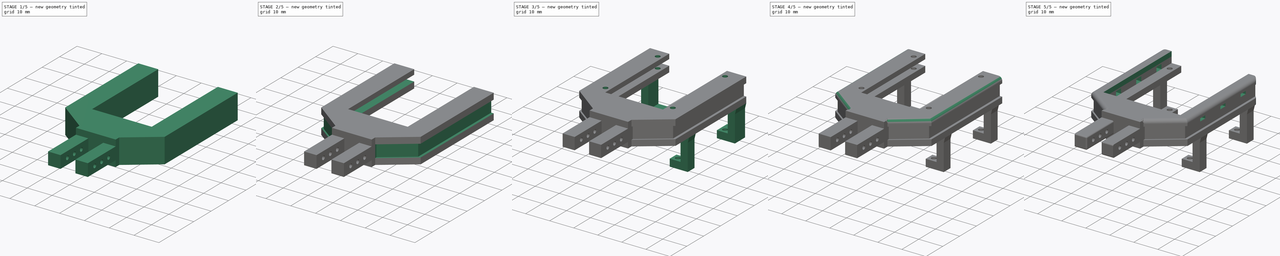
[diagram: build sequence overview — one tinted view per stage of 5, left to right]
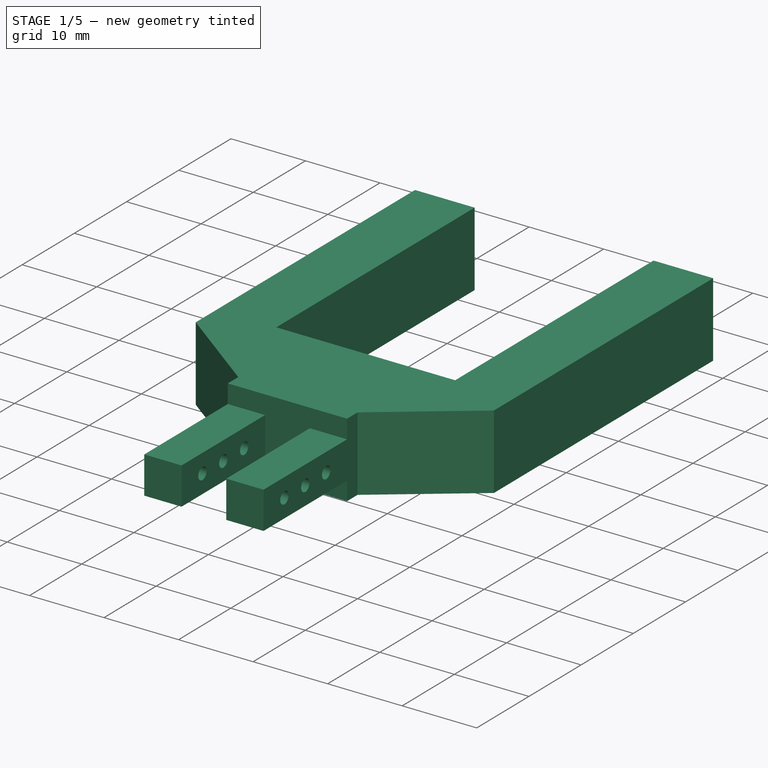
[diagram: stage 1 of 5 — iso view after this stage's code; geometry added in this stage tinted green]
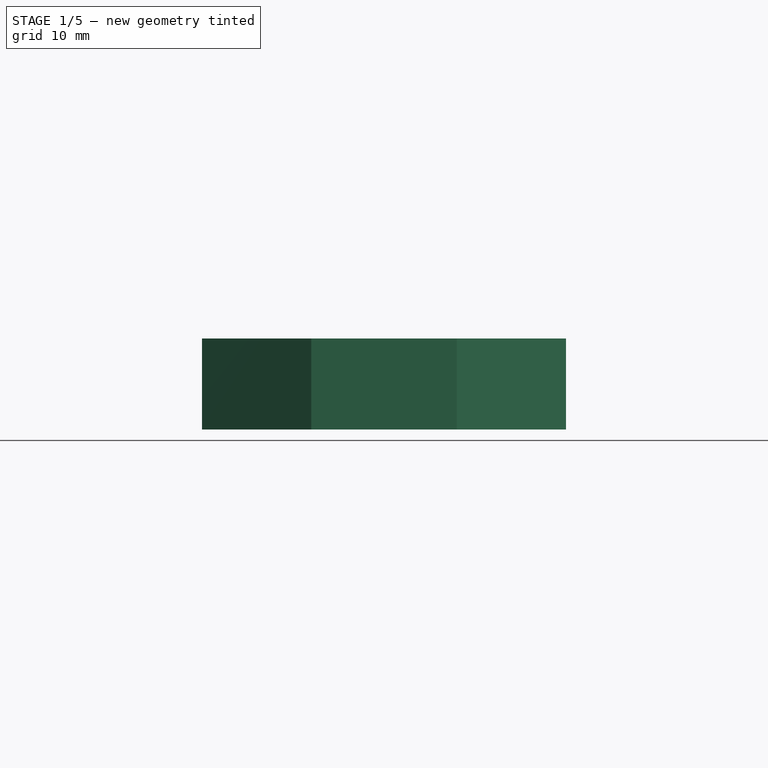
[diagram: stage 1 of 5 — front view after this stage's code; geometry added in this stage tinted green]
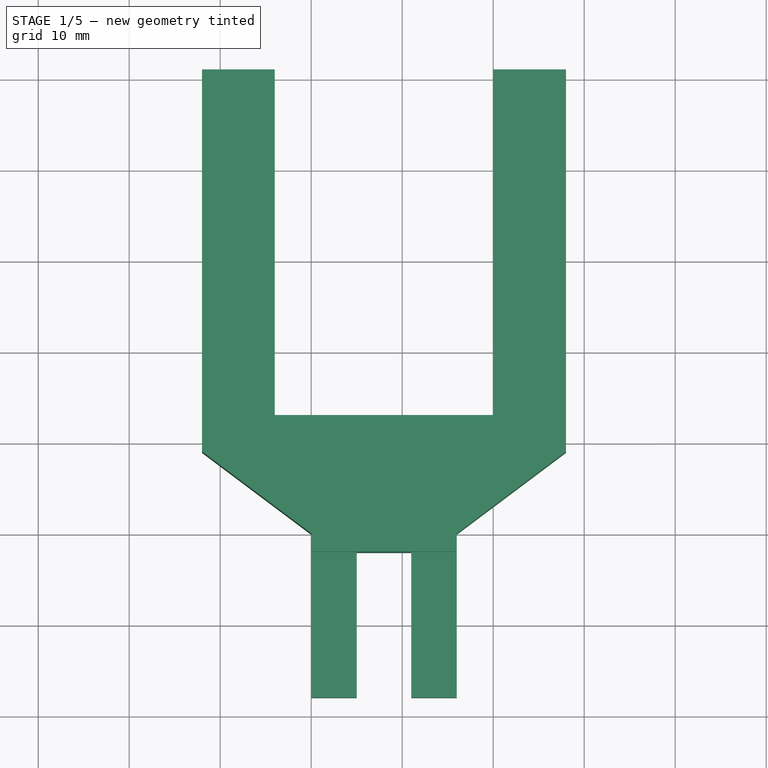
[diagram: stage 1 of 5 — top view after this stage's code; geometry added in this stage tinted green]
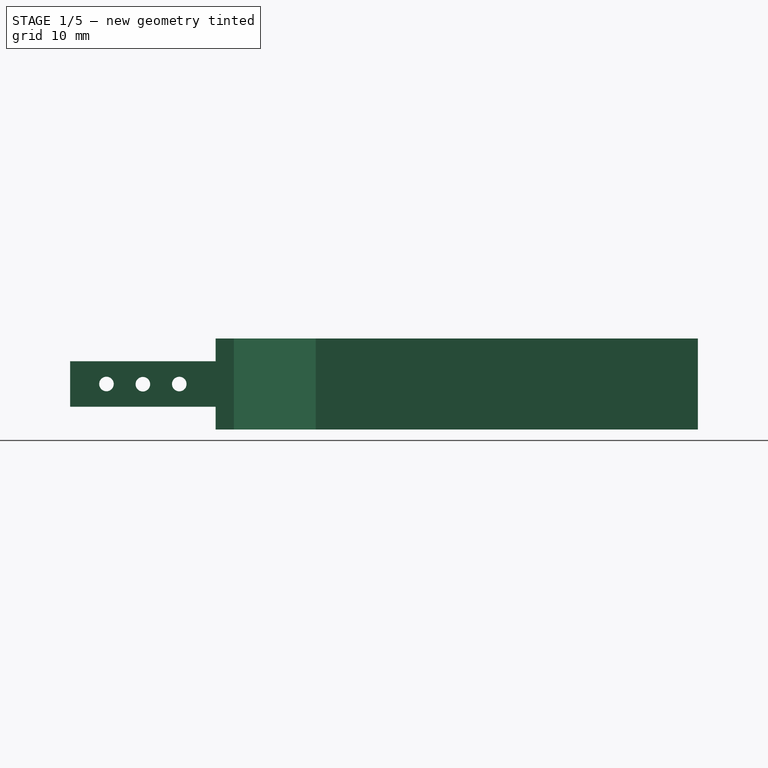
[diagram: stage 1 of 5 — right view after this stage's code; geometry added in this stage tinted green]
FCSTD DOCUMENT  (FreeCAD 0.16R6707 (Git))
Label: bxgr_optskin02a-v3.1
License: All rights reserved
LicenseURL: http://en.wikipedia.org/wiki/All_rights_reserved
objects: Sketcher::SketchObject×17, PartDesign::Pocket×14, PartDesign::Pad×3, Part::Fillet×2, Part::MultiFuse×1
note: 54 computed .brp shape members not serialized (recipe doc carries the construction recipe); baked Part::Feature solids carry a one-line shape summary decoded from their .brp

FEATURE [Sketcher::SketchObject] Sketch
  sketch-geometry (10):
    g0: LineSegment StartX=28 StartY=51 StartZ=0 EndX=28 EndY=9 EndZ=0
    g1: LineSegment StartX=-12 StartY=9 StartZ=0 EndX=-12 EndY=51 EndZ=0
    g2: LineSegment StartX=-12 StartY=9 StartZ=0 EndX=0 EndY=0 EndZ=0
    g3: LineSegment StartX=0 StartY=0 StartZ=0 EndX=16 EndY=0 EndZ=0
    g4: LineSegment StartX=16 StartY=0 StartZ=0 EndX=28 EndY=9 EndZ=0
    g5: LineSegment StartX=20 StartY=51 StartZ=0 EndX=20 EndY=13 EndZ=0
    g6: LineSegment StartX=20 StartY=13 StartZ=0 EndX=-4 EndY=13 EndZ=0
    g7: LineSegment StartX=-4 StartY=13 StartZ=0 EndX=-4 EndY=51 EndZ=0
    g8: LineSegment StartX=-12 StartY=51 StartZ=0 EndX=-4 EndY=51 EndZ=0
    g9: LineSegment StartX=20 StartY=51 StartZ=0 EndX=28 EndY=51 EndZ=0
  constraints (29):
    c: Vertical(g0)
    c: Vertical(g1)
    c: DistanceY(g1,g1) = 42
    c: DistanceX(g1,g0) = 40
    c: Coincident(g2,g3)
    c: Horizontal(g3)
    c: Coincident(g3,g4)
    c: Coincident(g4,g0)
    c: DistanceX(g2,g3) = 16
    c: DistanceY(g2,g1) = 9
    c: DistanceX(g1,g2) = 12
    c: Coincident(g2,g-1)
    c: Coincident(g5,g6)
    c: Coincident(g6,g7)
    c: Horizontal(g6)
    c: Vertical(g5)
    c: Vertical(g7)
    c: DistanceX(g1,g7) = 8
    c: DistanceX(g5,g0) = 8
    c: DistanceY(g3,g0) = 9
    c: Coincident(g1,g2)
    c: DistanceY(g6,g7) = 38
    c: Coincident(g8,g7)
    c: Horizontal(g8)
    c: Horizontal(g9)
    c: Coincident(g0,g9)
    c: Coincident(g5,g9)
    c: Coincident(g1,g8)
    c: DistanceY(g0,g0) = 42
FEATURE [PartDesign::Pad] Pad
  Length = 10
  Length2 = 100
  Sketch = -> Sketch
  Type = 0
FEATURE [Sketcher::SketchObject] Sketch011
  sketch-geometry (4):
    g0: LineSegment StartX=0 StartY=0 StartZ=0 EndX=16 EndY=0 EndZ=0
    g1: LineSegment StartX=16 StartY=0 StartZ=0 EndX=16 EndY=-18 EndZ=0
    g2: LineSegment StartX=16 StartY=-18 StartZ=0 EndX=0 EndY=-18 EndZ=0
    g3: LineSegment StartX=0 StartY=-18 StartZ=0 EndX=0 EndY=0 EndZ=0
  constraints (11):
    c: Coincident(g0,g1)
    c: Coincident(g1,g2)
    c: Coincident(g2,g3)
    c: Coincident(g3,g0)
    c: Horizontal(g0)
    c: Horizontal(g2)
    c: Vertical(g1)
    c: Vertical(g3)
    c: Coincident(g-1,g0)
    c: DistanceX(g-1,g0) = 16
    c: DistanceY(g2,g-1) = 18
FEATURE [PartDesign::Pad] Pad002
  Length = 10
  Length2 = 100
  Sketch = -> Sketch011
  Type = 0
FEATURE [Sketcher::SketchObject] Sketch012
  ExternalGeometry = -> [Pad002]
  Placement = pos=(0,-18,0) rot=(1,0,0;1.5708rad)
  Support = -> Pad002 [Face3]
  sketch-geometry (14):
    g0: LineSegment StartX=0 StartY=10 StartZ=0 EndX=16 EndY=10 EndZ=0
    g1: LineSegment StartX=16 StartY=10 StartZ=0 EndX=16 EndY=7.5 EndZ=0
    g2: LineSegment StartX=16 StartY=7.5 StartZ=0 EndX=11 EndY=7.5 EndZ=0
    g3: LineSegment StartX=0 StartY=7.5 StartZ=0 EndX=0 EndY=10 EndZ=0
    g4: LineSegment StartX=0 StartY=0 StartZ=0 EndX=16 EndY=0 EndZ=0
    g5: LineSegment StartX=16 StartY=0 StartZ=0 EndX=16 EndY=2.5 EndZ=0
    g6: LineSegment StartX=16 StartY=2.5 StartZ=0 EndX=11 EndY=2.5 EndZ=0
    g7: LineSegment StartX=0 StartY=2.5 StartZ=0 EndX=0 EndY=0 EndZ=0
    g8: LineSegment StartX=3 StartY=0 StartZ=0 EndX=6 EndY=0 EndZ=0
    g9: LineSegment StartX=11 StartY=2.5 StartZ=0 EndX=11 EndY=7.5 EndZ=0
    g10: LineSegment StartX=13 StartY=10 StartZ=0 EndX=3 EndY=10 EndZ=0
    g11: LineSegment StartX=5 StartY=7.5 StartZ=0 EndX=5 EndY=2.5 EndZ=0
    g12: LineSegment StartX=5 StartY=7.5 StartZ=0 EndX=0 EndY=7.5 EndZ=0
    g13: LineSegment StartX=5 StartY=2.5 StartZ=0 EndX=0 EndY=2.5 EndZ=0
  constraints (36):
    c: Coincident(g0,g1)
    c: Coincident(g1,g2)
    c: Coincident(g12,g3)
    c: Coincident(g3,g0)
    c: Horizontal(g0)
    c: Horizontal(g2)
    c: Vertical(g1)
    c: Vertical(g3)
    c: Coincident(g0,g-4)
    c: PointOnObject(g1,g-6)
    c: Coincident(g4,g5)
    c: Coincident(g5,g6)
    c: Coincident(g13,g7)
    c: Coincident(g7,g4)
    c: Horizontal(g4)
    c: Horizontal(g6)
    c: Vertical(g5)
    c: Vertical(g7)
    c: Coincident(g4,g-1)
    c: Horizontal(g8)
    c: Horizontal(g10)
    c: Vertical(g9)
    c: Vertical(g11)
    c: PointOnObject(g8,g-5)
    c: PointOnObject(g10,g-3)
    c: DistanceY(g12,g0) = 2.5
    c: DistanceY(g-1,g13) = 2.5
    c: Coincident(g4,g-6)
    c: Coincident(g2,g9)
    c: Coincident(g12,g11)
    c: Tangent(g2,g12)
    c: Tangent(g6,g13)
    c: Coincident(g11,g13)
    c: Coincident(g9,g6)
    c: DistanceX(g11,g2) = 6
    c: DistanceX(g0,g11) = 5
FEATURE [PartDesign::Pocket] Pocket009
  Length = 16
  Sketch = -> Sketch012
  Type = 0
FEATURE [Sketcher::SketchObject] Sketch013
  ExternalGeometry = -> [Pocket009]
  Placement = pos=(16,0,0) rot=(0.57735,0.57735,0.57735;2.0944rad)
  Support = -> Pocket009 [Face3]
  sketch-geometry (3):
    g0: Circle CenterX=-14 CenterY=5 CenterZ=0 NormalX=0 NormalY=0 NormalZ=1 Radius=0.8
    g1: Circle CenterX=-10 CenterY=4.9768 CenterZ=0 NormalX=0 NormalY=0 NormalZ=1 Radius=0.8
    g2: Circle CenterX=-6 CenterY=4.99368 CenterZ=0 NormalX=0 NormalY=0 NormalZ=1 Radius=0.8
  constraints (9):
    c: Radius(g0) = 0.8
    c: Equal(g0,g1)
    c: Equal(g0,g2)
    c: DistanceX(g-3,g0) = 4
    c: DistanceX(g0,g1) = 4
    c: DistanceX(g1,g2) = 4
    c: DistanceY(g0,g-3) = 2.5
    c: DistanceY(g1,g-3) = 2.5232
    c: DistanceY(g2,g-3) = 2.50632
FEATURE [PartDesign::Pocket] Pocket010
  Length = 16
  Sketch = -> Sketch013
  Type = 0
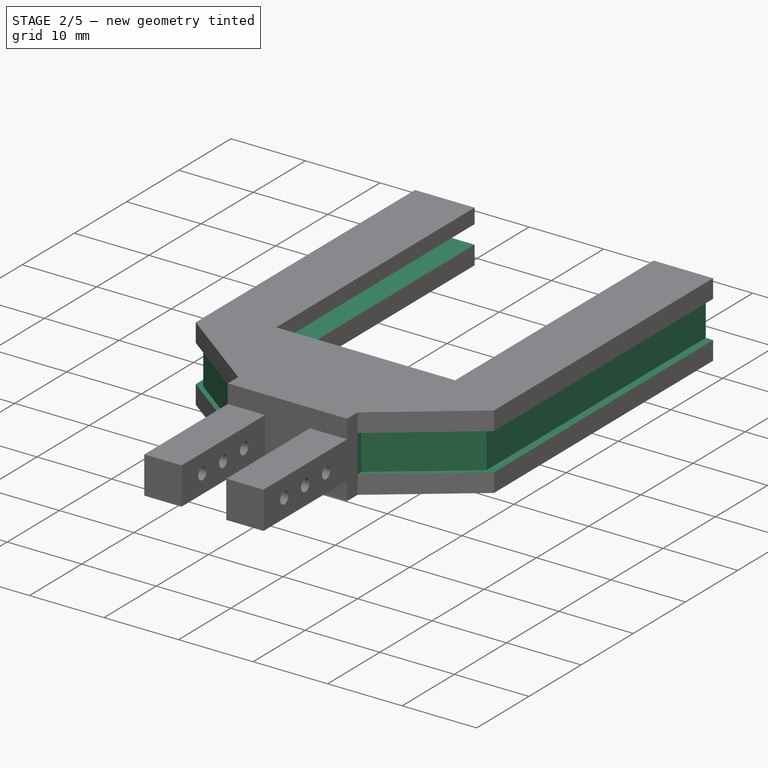
[diagram: stage 2 of 5 — iso view after this stage's code; geometry added in this stage tinted green]
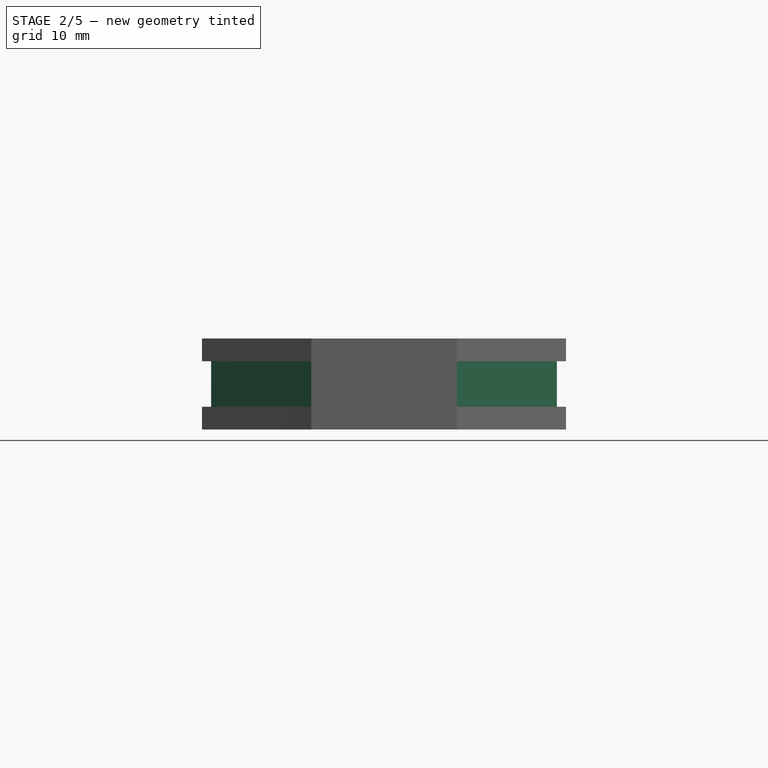
[diagram: stage 2 of 5 — front view after this stage's code; geometry added in this stage tinted green]
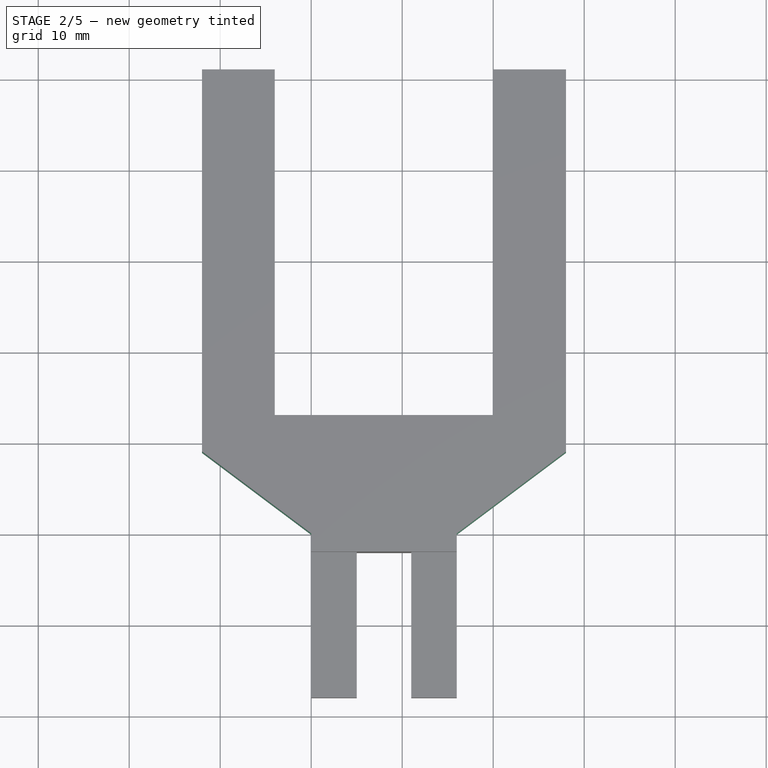
[diagram: stage 2 of 5 — top view after this stage's code; geometry added in this stage tinted green]
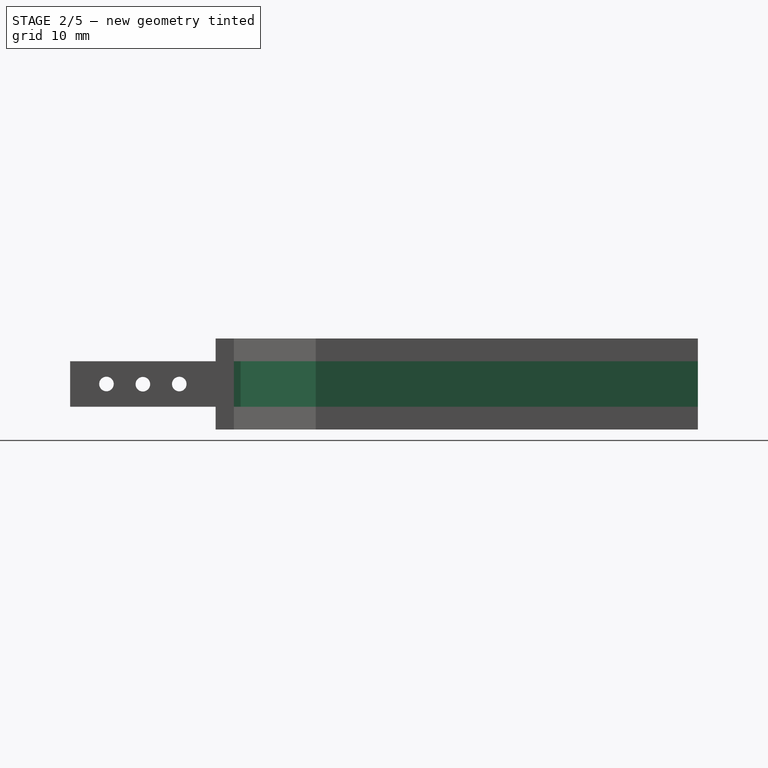
[diagram: stage 2 of 5 — right view after this stage's code; geometry added in this stage tinted green]
FEATURE [Sketcher::SketchObject] Sketch001
  ExternalGeometry = -> [Pad]
  Placement = pos=(0,51,0) rot=(0,0.707107,0.707107;3.14159rad)
  Support = -> Pad [Face7]
  sketch-geometry (8):
    g0: LineSegment StartX=-28 StartY=7.5 StartZ=0 EndX=-27 EndY=7.5 EndZ=0
    g1: LineSegment StartX=-27 StartY=7.5 StartZ=0 EndX=-27 EndY=2.5 EndZ=0
    g2: LineSegment StartX=-27 StartY=2.5 StartZ=0 EndX=-28 EndY=2.5 EndZ=0
    g3: LineSegment StartX=-28 StartY=2.5 StartZ=0 EndX=-28 EndY=7.5 EndZ=0
    g4: LineSegment StartX=12 StartY=7.5 StartZ=0 EndX=11 EndY=7.5 EndZ=0
    g5: LineSegment StartX=11 StartY=7.5 StartZ=0 EndX=11 EndY=2.5 EndZ=0
    g6: LineSegment StartX=11 StartY=2.5 StartZ=0 EndX=12 EndY=2.5 EndZ=0
    g7: LineSegment StartX=12 StartY=2.5 StartZ=0 EndX=12 EndY=7.5 EndZ=0
  constraints (24):
    c: Coincident(g0,g1)
    c: Coincident(g1,g2)
    c: Coincident(g2,g3)
    c: Coincident(g3,g0)
    c: Horizontal(g0)
    c: Horizontal(g2)
    c: Vertical(g1)
    c: Vertical(g3)
    c: PointOnObject(g0,g-3)
    c: DistanceY(g0,g-4) = 2.5
    c: DistanceY(g-6,g2) = 2.5
    c: Coincident(g4,g5)
    c: Coincident(g5,g6)
    c: Coincident(g6,g7)
    c: Coincident(g7,g4)
    c: Horizontal(g4)
    c: Horizontal(g6)
    c: Vertical(g5)
    c: Vertical(g7)
    c: PointOnObject(g4,g-10)
    c: DistanceX(g4,g4) = 1
    c: DistanceY(g4,g-10) = 2.5
    c: DistanceY(g-10,g6) = 2.5
    c: DistanceX(g0,g0) = 1
FEATURE [PartDesign::Pocket] Pocket
  Length = 54
  Sketch = -> Sketch001
  Type = 0
FEATURE [Sketcher::SketchObject] Sketch002
  ExternalGeometry = -> [Pocket]
  Placement = pos=(0,51,0) rot=(0,0.707107,0.707107;3.14159rad)
  Support = -> Pocket [Face1]
  sketch-geometry (4):
    g0: LineSegment StartX=-24 StartY=8 StartZ=0 EndX=8 EndY=8 EndZ=0
    g1: LineSegment StartX=8 StartY=8 StartZ=0 EndX=8 EndY=5.5 EndZ=0
    g2: LineSegment StartX=8 StartY=5.5 StartZ=0 EndX=-24 EndY=5.5 EndZ=0
    g3: LineSegment StartX=-24 StartY=5.5 StartZ=0 EndX=-24 EndY=8 EndZ=0
  constraints (12):
    c: Coincident(g0,g1)
    c: Coincident(g1,g2)
    c: Coincident(g2,g3)
    c: Coincident(g3,g0)
    c: Horizontal(g0)
    c: Horizontal(g2)
    c: Vertical(g1)
    c: Vertical(g3)
    c: DistanceX(g0,g-4) = 4
    c: DistanceX(g-8,g0) = 4
    c: DistanceY(g2,g0) = 2.5
    c: DistanceY(g0,g-4) = 2
FEATURE [PartDesign::Pocket] Pocket001
  Length = 40.5
  Sketch = -> Sketch002
  Type = 0
FEATURE [Sketcher::SketchObject] Sketch003
  ExternalGeometry = -> [Pocket001]
  Placement = pos=(0,51,0) rot=(0,0.707107,0.707107;3.14159rad)
  Support = -> Pocket001 [Face1]
  sketch-geometry (4):
    g0: LineSegment StartX=-24.5 StartY=3 StartZ=0 EndX=8.5 EndY=3 EndZ=0
    g1: LineSegment StartX=8.5 StartY=3 StartZ=0 EndX=8.5 EndY=0 EndZ=0
    g2: LineSegment StartX=8.5 StartY=0 StartZ=0 EndX=-24.5 EndY=0 EndZ=0
    g3: LineSegment StartX=-24.5 StartY=0 StartZ=0 EndX=-24.5 EndY=3 EndZ=0
  constraints (12):
    c: Coincident(g0,g1)
    c: Coincident(g1,g2)
    c: Coincident(g2,g3)
    c: Coincident(g3,g0)
    c: Horizontal(g0)
    c: Horizontal(g2)
    c: Vertical(g1)
    c: Vertical(g3)
    c: DistanceX(g2,g-4) = 4.5
    c: DistanceX(g-5,g1) = 4.5
    c: DistanceY(g0,g-7) = 2.5
    c: PointOnObject(g2,g-4)
FEATURE [PartDesign::Pocket] Pocket002
  Length = 38
  Sketch = -> Sketch003
  Type = 0
FEATURE [Sketcher::SketchObject] Sketch005
  ExternalGeometry = -> [Pocket002]
  Placement = pos=(0,0,2.5) rot=(0,0,1;0rad)
  Support = -> Pocket002 [Face4]
  sketch-geometry (8):
    g0: LineSegment StartX=16 StartY=0 StartZ=0 EndX=16 EndY=0.75 EndZ=0
    g1: LineSegment StartX=16 StartY=0.75 StartZ=0 EndX=28 EndY=9.75 EndZ=0
    g2: LineSegment StartX=28 StartY=9.75 StartZ=0 EndX=28 EndY=9 EndZ=0
    g3: LineSegment StartX=28 StartY=9 StartZ=0 EndX=16 EndY=0 EndZ=0
    g4: LineSegment StartX=0 StartY=0 StartZ=0 EndX=0 EndY=0.75 EndZ=0
    g5: LineSegment StartX=0 StartY=0.75 StartZ=0 EndX=-12 EndY=9.75 EndZ=0
    g6: LineSegment StartX=-12 StartY=9.75 StartZ=0 EndX=-12 EndY=9 EndZ=0
    g7: LineSegment StartX=-12 StartY=9 StartZ=0 EndX=0 EndY=0 EndZ=0
  constraints (20):
    c: Coincident(g-1,g7)
    c: Coincident(g5,g4)
    c: Coincident(g-1,g4)
    c: Coincident(g7,g-8)
    c: Coincident(g7,g6)
    c: Coincident(g6,g5)
    c: Coincident(g-3,g3)
    c: Coincident(g3,g0)
    c: Coincident(g1,g0)
    c: Coincident(g-6,g3)
    c: Coincident(g3,g2)
    c: Coincident(g2,g1)
    c: PointOnObject(g1,g-4)
    c: PointOnObject(g5,g-8)
    c: Vertical(g4)
    c: Vertical(g0)
    c: Distance(g-12,g5) = 3
    c: Parallel(g3,g1)
    c: Parallel(g5,g7)
    c: Distance(g-11,g1) = 3
FEATURE [PartDesign::Pocket] Pocket003
  Length = 5
  Reversed = true
  Sketch = -> Sketch005
  Type = 0
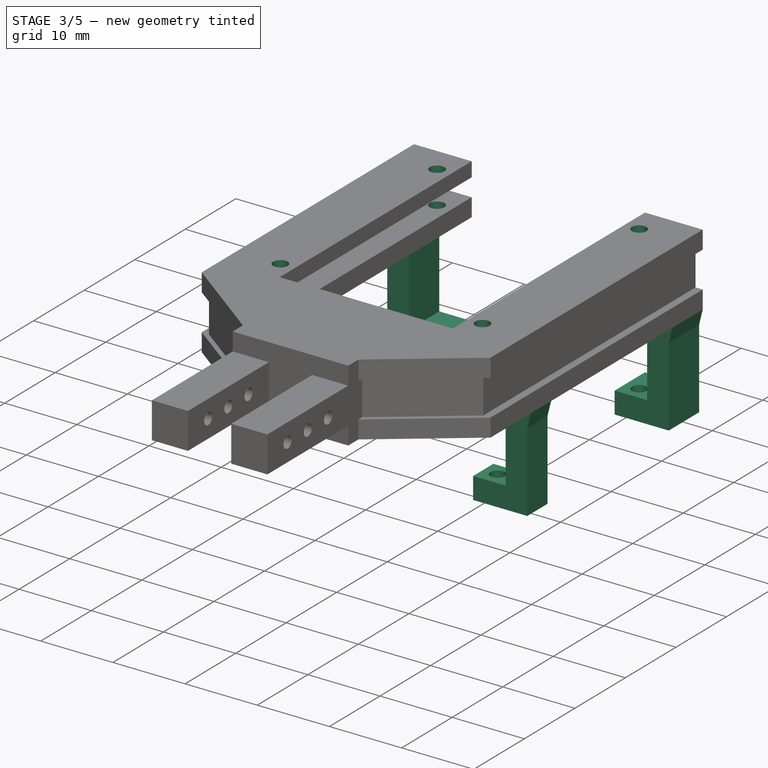
[diagram: stage 3 of 5 — iso view after this stage's code; geometry added in this stage tinted green]
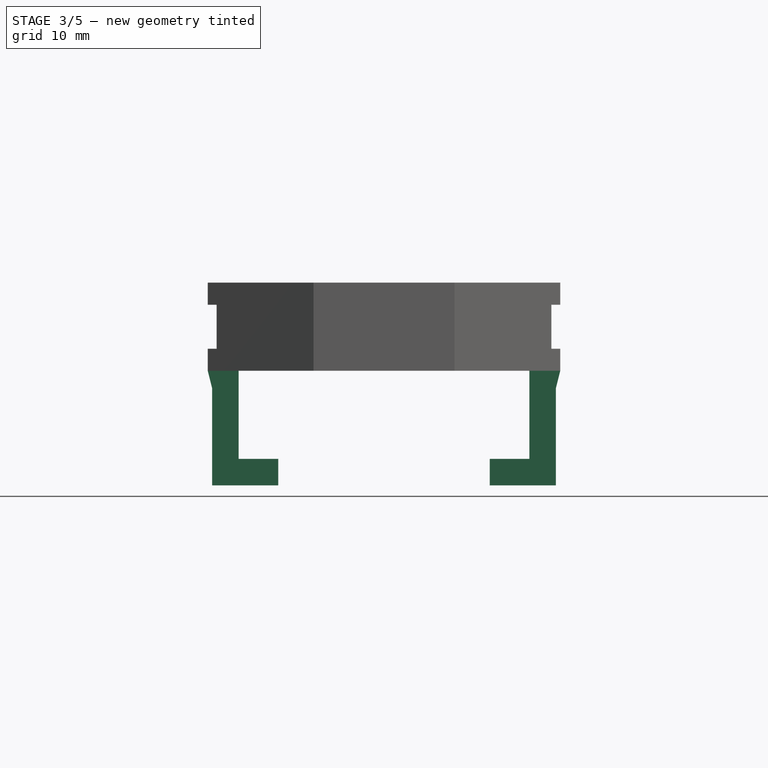
[diagram: stage 3 of 5 — front view after this stage's code; geometry added in this stage tinted green]
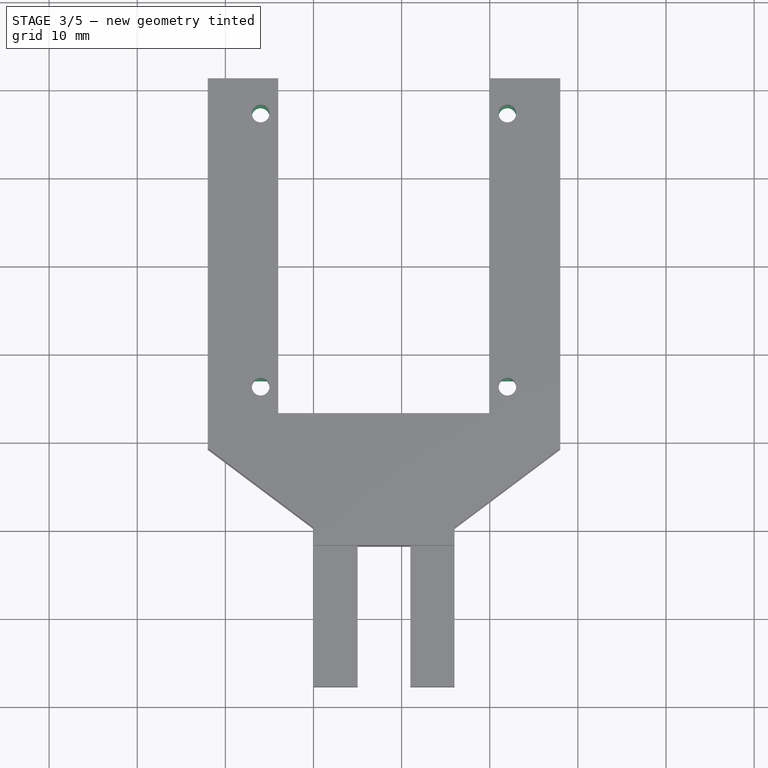
[diagram: stage 3 of 5 — top view after this stage's code; geometry added in this stage tinted green]
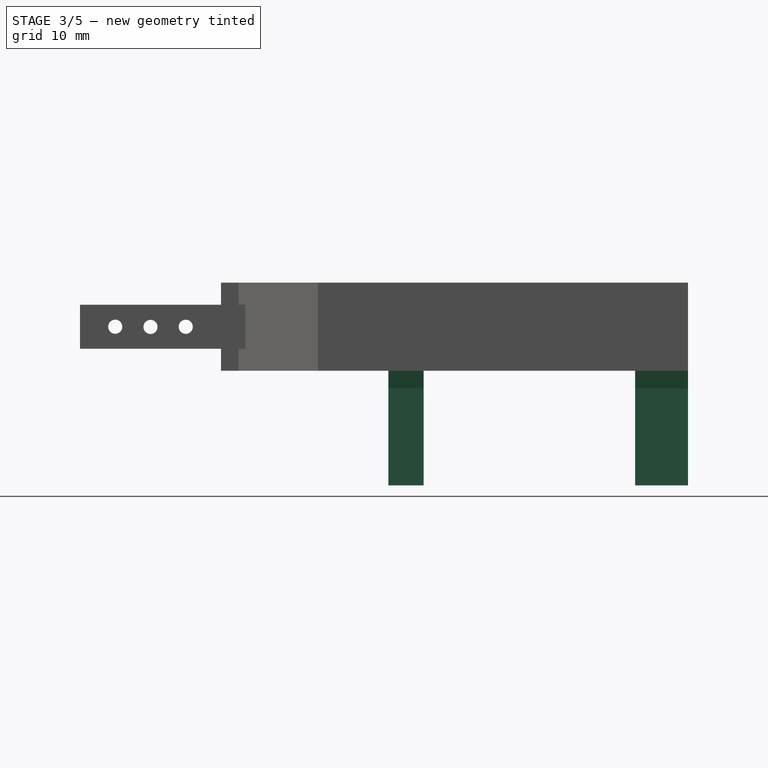
[diagram: stage 3 of 5 — right view after this stage's code; geometry added in this stage tinted green]
FEATURE [Sketcher::SketchObject] Sketch004
  ExternalGeometry = -> [Pocket002]
  Placement = pos=(0,0,10) rot=(0,0,1;0rad)
  Support = -> Pocket003 [Face8]
  sketch-geometry (4):
    g0: Circle CenterX=-6 CenterY=16 CenterZ=0 NormalX=0 NormalY=0 NormalZ=1 Radius=1
    g1: Circle CenterX=-6 CenterY=47 CenterZ=0 NormalX=0 NormalY=0 NormalZ=1 Radius=1
    g2: Circle CenterX=22 CenterY=47 CenterZ=0 NormalX=0 NormalY=0 NormalZ=1 Radius=1
    g3: Circle CenterX=22 CenterY=16 CenterZ=0 NormalX=0 NormalY=0 NormalZ=1 Radius=1
  constraints (12):
    c: Radius(g1) = 1
    c: Equal(g1,g2)
    c: Equal(g1,g0)
    c: Equal(g1,g3)
    c: DistanceX(g1,g-6) = 2
    c: DistanceX(g-7,g2) = 2
    c: DistanceX(g0,g-6) = 2
    c: DistanceX(g-7,g3) = 2
    c: DistanceY(g-6,g0) = 3
    c: DistanceY(g-7,g3) = 3
    c: DistanceY(g1,g-6) = 4
    c: DistanceY(g2,g-7) = 4
FEATURE [PartDesign::Pocket] Pocket004
  Length = 10
  Sketch = -> Sketch004
  Type = 0
FEATURE [Sketcher::SketchObject] Sketch006
  ExternalGeometry = -> [Pocket004]
  Placement = pos=(0,0,0) rot=(1,0,0;3.14159rad)
  Support = -> Pocket004 [Face2]
  sketch-geometry (8):
    g0: LineSegment StartX=-12 StartY=-17 StartZ=0 EndX=28 EndY=-17 EndZ=0
    g1: LineSegment StartX=28 StartY=-17 StartZ=0 EndX=28 EndY=-51 EndZ=0
    g2: LineSegment StartX=28 StartY=-51 StartZ=0 EndX=-12 EndY=-51 EndZ=0
    g3: LineSegment StartX=-12 StartY=-51 StartZ=0 EndX=-12 EndY=-17 EndZ=0
    g4: Circle CenterX=-6 CenterY=-19 CenterZ=0 NormalX=0 NormalY=0 NormalZ=1 Radius=1
    g5: Circle CenterX=-6 CenterY=-47 CenterZ=0 NormalX=0 NormalY=0 NormalZ=1 Radius=1
    g6: Circle CenterX=22 CenterY=-47 CenterZ=0 NormalX=0 NormalY=0 NormalZ=1 Radius=1
    g7: Circle CenterX=22 CenterY=-19 CenterZ=0 NormalX=0 NormalY=0 NormalZ=1 Radius=1
  constraints (24):
    c: Coincident(g0,g1)
    c: Coincident(g1,g2)
    c: Coincident(g2,g3)
    c: Coincident(g3,g0)
    c: Horizontal(g0)
    c: Horizontal(g2)
    c: Vertical(g1)
    c: Vertical(g3)
    c: DistanceX(g0,g0) = 40
    c: DistanceY(g2,g0) = 34
    c: PointOnObject(g1,g-3)
    c: DistanceX(g1,g-3) = 0
    c: Radius(g4) = 1
    c: Equal(g4,g7)
    c: Equal(g4,g6)
    c: Equal(g4,g5)
    c: DistanceX(g4,g7) = 28
    c: DistanceX(g5,g6) = 28
    c: DistanceY(g5,g4) = 28
    c: DistanceY(g6,g7) = 28
    c: DistanceX(g6,g1) = 6
    c: DistanceY(g1,g6) = 4
    c: DistanceY(g2,g5) = 4
    c: DistanceX(g7,g0) = 6
FEATURE [PartDesign::Pad] Pad001
  Length = 13
  Length2 = 100
  Sketch = -> Sketch006
  Type = 0
FEATURE [Sketcher::SketchObject] Sketch007
  ExternalGeometry = -> [Pad001]
  Placement = pos=(0,51,0) rot=(0,0.707107,0.707107;3.14159rad)
  Support = -> Pad001 [Face6]
  sketch-geometry (19):
    g0: LineSegment StartX=-24.5 StartY=0 StartZ=0 EndX=8.5 EndY=0 EndZ=0
    g1: LineSegment StartX=8.5 StartY=0 StartZ=0 EndX=8.5 EndY=-10 EndZ=0
    g2: LineSegment StartX=8.5 StartY=-10 StartZ=0 EndX=4 EndY=-10 EndZ=0
    g3: LineSegment StartX=-24.5 StartY=-10 StartZ=0 EndX=-24.5 EndY=0 EndZ=0
    g4: LineSegment StartX=-20 StartY=-10 StartZ=0 EndX=4 EndY=-10 EndZ=0
    g5: LineSegment StartX=4 StartY=-10 StartZ=0 EndX=4 EndY=-13 EndZ=0
    g6: LineSegment StartX=4 StartY=-13 StartZ=0 EndX=-20 EndY=-13 EndZ=0
    g7: LineSegment StartX=-20 StartY=-13 StartZ=0 EndX=-20 EndY=-10 EndZ=0
    g8: LineSegment StartX=-28 StartY=0 StartZ=0 EndX=-27.5 EndY=-2 EndZ=0
    g9: LineSegment StartX=-27.5 StartY=-2 StartZ=0 EndX=-27.5 EndY=-13 EndZ=0
    g10: LineSegment StartX=-27.5 StartY=-13 StartZ=0 EndX=-28 EndY=-13 EndZ=0
    g11: LineSegment StartX=-28 StartY=-13 StartZ=0 EndX=-28 EndY=0 EndZ=0
    g12: LineSegment StartX=12 StartY=0 StartZ=0 EndX=11.5 EndY=-2 EndZ=0
    g13: LineSegment StartX=11.5 StartY=-2 StartZ=0 EndX=11.5 EndY=-13 EndZ=0
    g14: LineSegment StartX=11.5 StartY=-13 StartZ=0 EndX=12 EndY=-13 EndZ=0
    g15: LineSegment StartX=12 StartY=-13 StartZ=0 EndX=12 EndY=0 EndZ=0
    g16: LineSegment StartX=-20 StartY=-10 StartZ=0 EndX=-24.5 EndY=-10 EndZ=0
    g17: GeomPoint [constr] X=0 Y=0 Z=0
    g18: GeomPoint [constr] X=0 Y=0 Z=0
  constraints (52):
    c: Coincident(g1,g2)
    c: Coincident(g16,g3)
    c: Horizontal(g0)
    c: Horizontal(g2)
    c: Vertical(g1)
    c: Vertical(g3)
    c: Coincident(g4,g5)
    c: Coincident(g5,g6)
    c: Coincident(g6,g7)
    c: Coincident(g7,g4)
    c: Horizontal(g4)
    c: Horizontal(g6)
    c: Vertical(g5)
    c: Vertical(g7)
    c: DistanceX(g6,g5) = 24
    c: DistanceY(g5,g4) = 3
    c: DistanceY(g4,g1) = 0
    c: DistanceX(g4,g1) = 4.5
    c: DistanceX(g16,g4) = 4.5
    c: Coincident(g8,g9)
    c: Vertical(g9)
    c: Coincident(g9,g10)
    c: Horizontal(g10)
    c: Coincident(g10,g11)
    c: Coincident(g11,g8)
    c: Vertical(g11)
    c: Coincident(g12,g13)
    c: Vertical(g13)
    c: Coincident(g13,g14)
    c: Horizontal(g14)
    c: Coincident(g14,g15)
    c: Coincident(g15,g12)
    c: Vertical(g15)
    c: Coincident(g0,g1)
    c: Coincident(g0,g3)
    c: DistanceX(g8,g0) = 3.5
    c: DistanceY(g8,g0) = 0
    c: DistanceY(g8,g0) = 2
    c: DistanceY(g8,g12) = 0
    c: DistanceY(g9,g6) = 0
    c: DistanceY(g13,g5) = 0
    c: DistanceX(g9,g16) = 3
    c: DistanceX(g1,g13) = 3
    c: DistanceY(g5,g12) = 13
    c: DistanceX(g0,g12) = 3.5
    c: DistanceY(g0) = 0
    c: PointOnObject(g2,g5)
    c: PointOnObject(g16,g7)
    c: Tangent(g2,g16)
    c: DistanceY(g12,g12) = 2
    c: Coincident(g-1,g18)
    c: DistanceX(g-1,g0) = 8.5
FEATURE [PartDesign::Pocket] Pocket005
  Length = 36
  Sketch = -> Sketch007
  Type = 0
FEATURE [Sketcher::SketchObject] Sketch008
  ExternalGeometry = -> [Pocket005]
  Placement = pos=(0,0,-13) rot=(1,0,0;3.14159rad)
  Support = -> Pocket005 [Face25]
  sketch-geometry (4):
    g0: LineSegment StartX=-12 StartY=-21 StartZ=0 EndX=28 EndY=-21 EndZ=0
    g1: LineSegment StartX=28 StartY=-21 StartZ=0 EndX=28 EndY=-45 EndZ=0
    g2: LineSegment StartX=28 StartY=-45 StartZ=0 EndX=-12 EndY=-45 EndZ=0
    g3: LineSegment StartX=-12 StartY=-45 StartZ=0 EndX=-12 EndY=-21 EndZ=0
  constraints (12):
    c: Coincident(g2,g3)
    c: Coincident(g2,g1)
    c: Coincident(g0,g3)
    c: Coincident(g1,g0)
    c: Horizontal(g0)
    c: Horizontal(g2)
    c: Vertical(g3)
    c: Vertical(g1)
    c: DistanceX(g2,g1) = 40
    c: DistanceY(g2,g0) = 24
    c: DistanceX(g0,g-1) = 12
    c: DistanceY(g0,g-1) = 21
FEATURE [PartDesign::Pocket] Pocket006
  Length = 13
  Sketch = -> Sketch008
  Type = 0
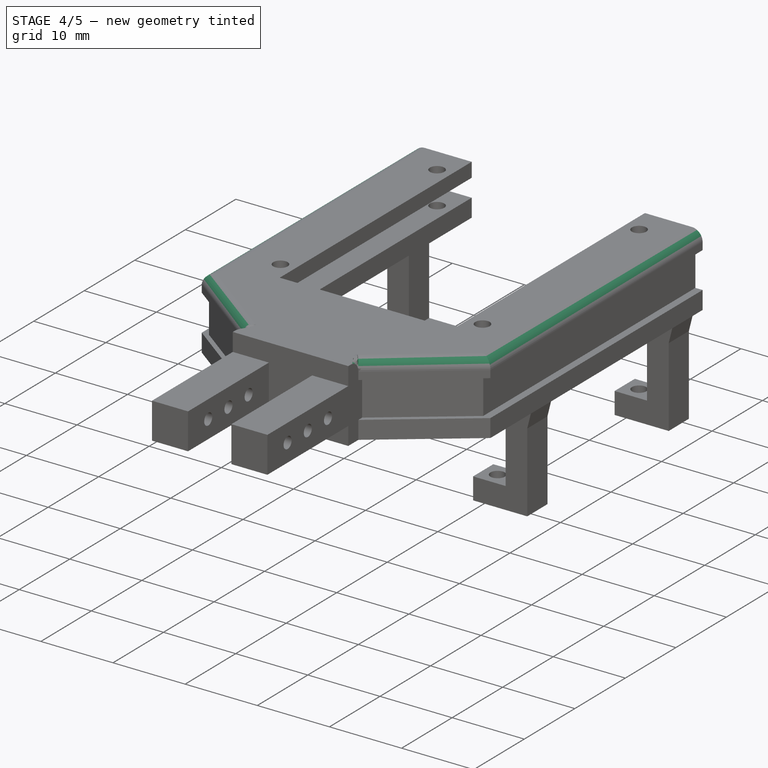
[diagram: stage 4 of 5 — iso view after this stage's code; geometry added in this stage tinted green]
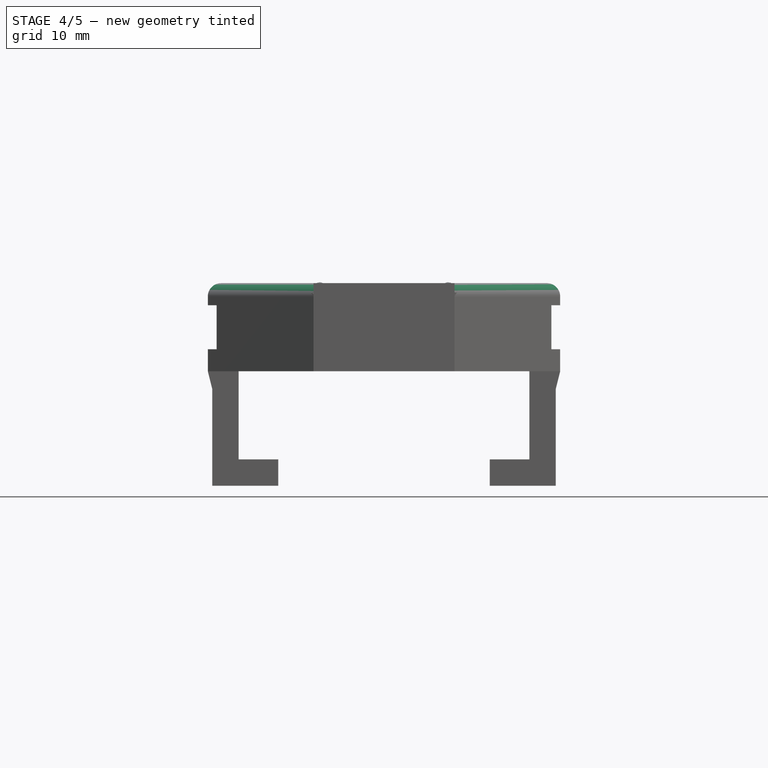
[diagram: stage 4 of 5 — front view after this stage's code; geometry added in this stage tinted green]
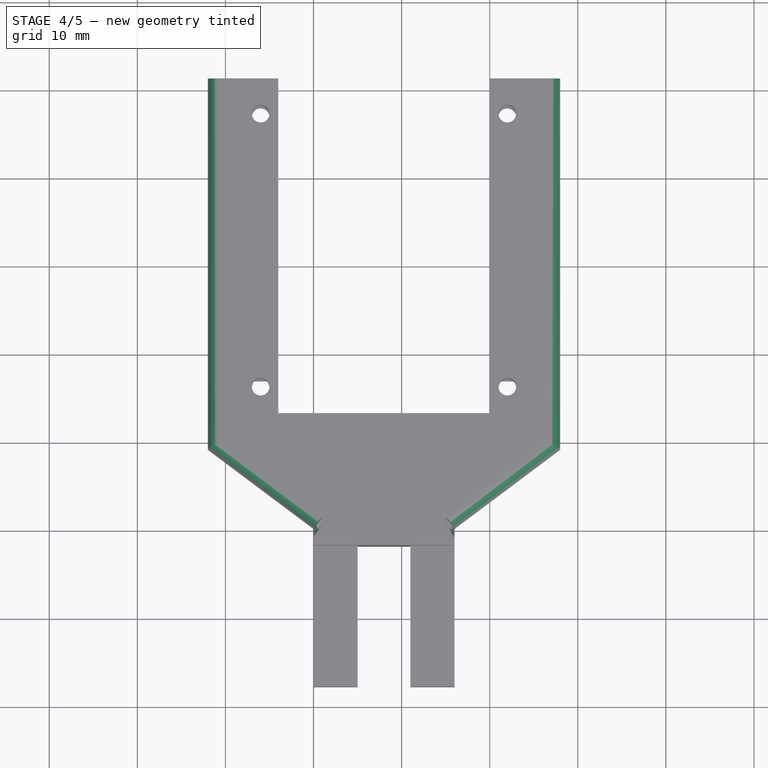
[diagram: stage 4 of 5 — top view after this stage's code; geometry added in this stage tinted green]
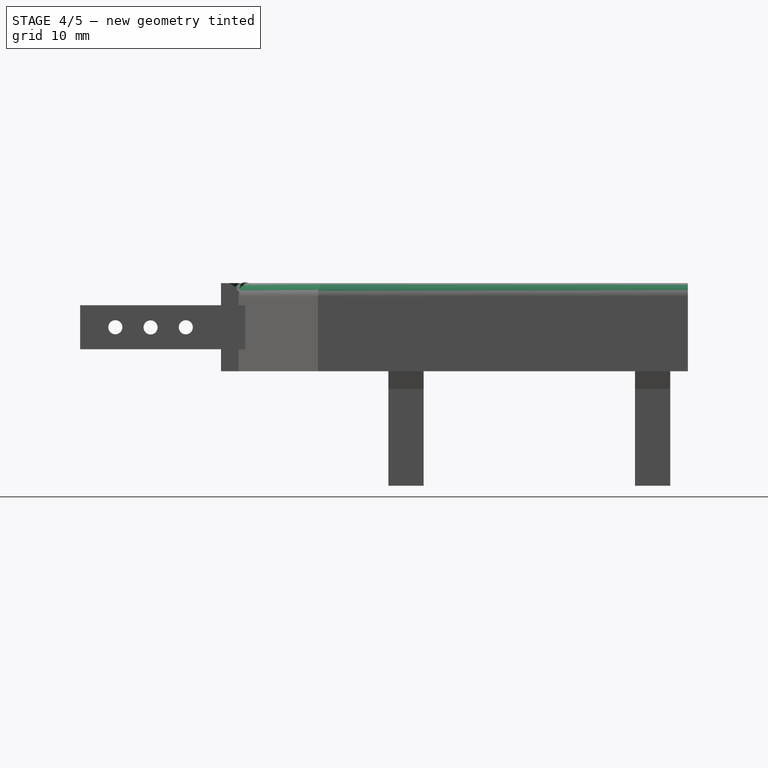
[diagram: stage 4 of 5 — right view after this stage's code; geometry added in this stage tinted green]
FEATURE [Sketcher::SketchObject] Sketch009
  ExternalGeometry = -> [Pocket006]
  Placement = pos=(0,51,0) rot=(0,0.707107,0.707107;3.14159rad)
  Support = -> Pocket006 [Face6]
  sketch-geometry (4):
    g0: LineSegment StartX=-28 StartY=-13 StartZ=0 EndX=12 EndY=-13 EndZ=0
    g1: LineSegment StartX=12 StartY=-13 StartZ=0 EndX=12 EndY=0 EndZ=0
    g2: LineSegment StartX=12 StartY=0 StartZ=0 EndX=-28 EndY=0 EndZ=0
    g3: LineSegment StartX=-28 StartY=0 StartZ=0 EndX=-28 EndY=-13 EndZ=0
  constraints (12):
    c: Coincident(g0,g1)
    c: Coincident(g1,g2)
    c: Coincident(g2,g3)
    c: Coincident(g3,g0)
    c: Horizontal(g0)
    c: Horizontal(g2)
    c: Vertical(g1)
    c: Vertical(g3)
    c: DistanceX(g0,g0) = 40
    c: DistanceY(g0,g1) = 13
    c: DistanceX(g-1,g1) = 12
    c: DistanceY(g1,g-1) = 0
FEATURE [PartDesign::Pocket] Pocket007
  Length = 2
  Sketch = -> Sketch009
  Type = 0
FEATURE [Sketcher::SketchObject] Sketch010
  ExternalGeometry = -> [Pocket007]
  Placement = pos=(0,51,0) rot=(0,0.707107,0.707107;3.14159rad)
  Support = -> Pocket007 [Face2]
  sketch-geometry (4):
    g0: LineSegment StartX=-10 StartY=5 StartZ=0 EndX=2 EndY=5 EndZ=0
    g1: LineSegment StartX=2 StartY=5 StartZ=0 EndX=2 EndY=2.5 EndZ=0
    g2: LineSegment StartX=2 StartY=2.5 StartZ=0 EndX=-10 EndY=2.5 EndZ=0
    g3: LineSegment StartX=-10 StartY=2.5 StartZ=0 EndX=-10 EndY=5 EndZ=0
  constraints (12):
    c: Coincident(g0,g1)
    c: Coincident(g1,g2)
    c: Coincident(g2,g3)
    c: Coincident(g3,g0)
    c: Horizontal(g0)
    c: Horizontal(g2)
    c: Vertical(g1)
    c: Vertical(g3)
    c: DistanceY(g1,g0) = 2.5
    c: DistanceX(g2,g-1) = 10
    c: DistanceX(g-1,g1) = 2
    c: DistanceY(g1) = 2.5
FEATURE [PartDesign::Pocket] Pocket008
  Length = 3
  Sketch = -> Sketch010
  Type = 0
FEATURE [Part::MultiFuse] Fusion
  Shapes = -> [Pocket010,Pocket008]
FEATURE [Part::Fillet] Fillet
  Base = -> Fusion
  Edges = 4 edges r=1.5: [Edge64,Edge69,Edge71,Edge74]
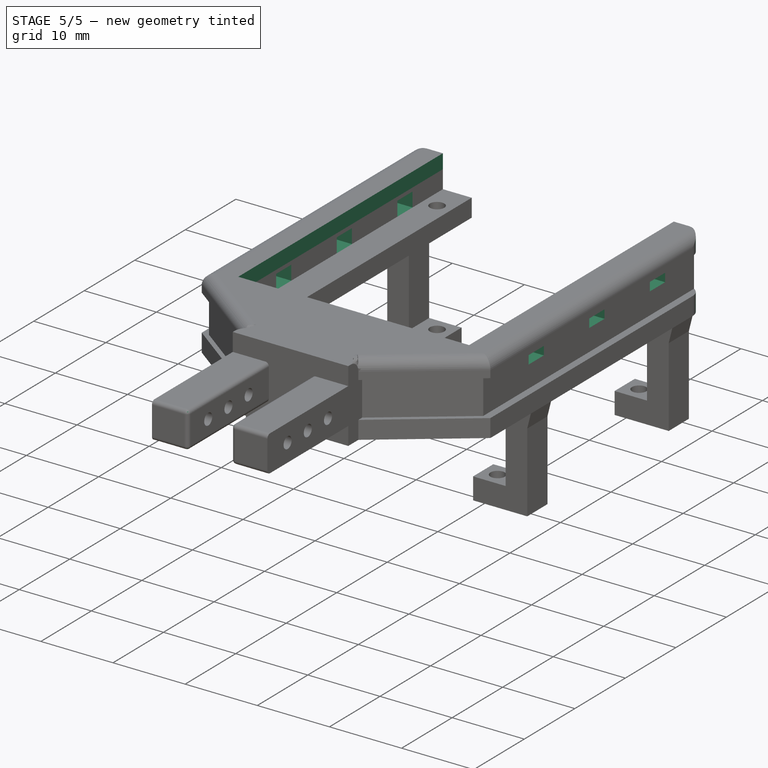
[diagram: stage 5 of 5 — iso view after this stage's code; geometry added in this stage tinted green]
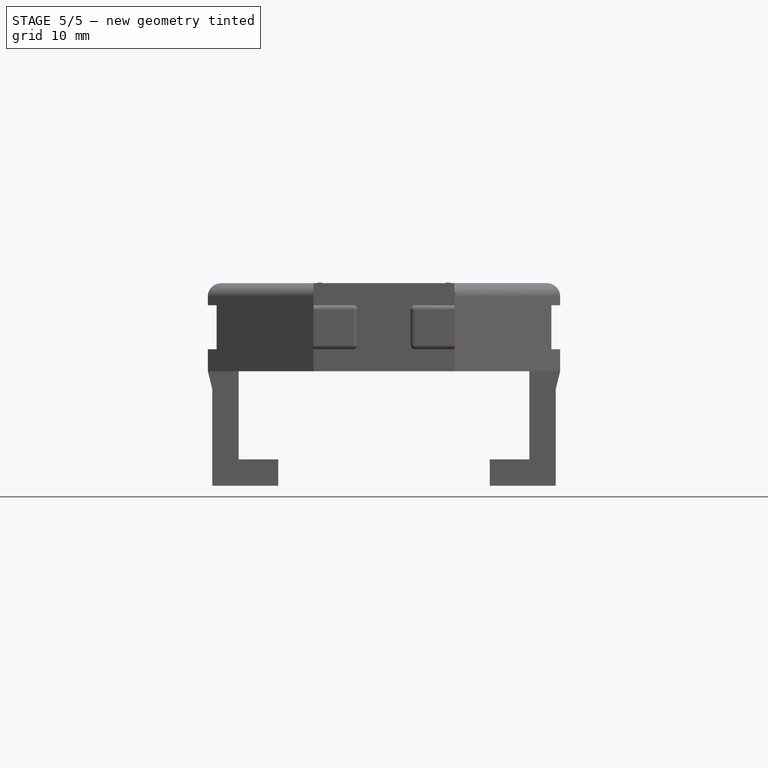
[diagram: stage 5 of 5 — front view after this stage's code; geometry added in this stage tinted green]
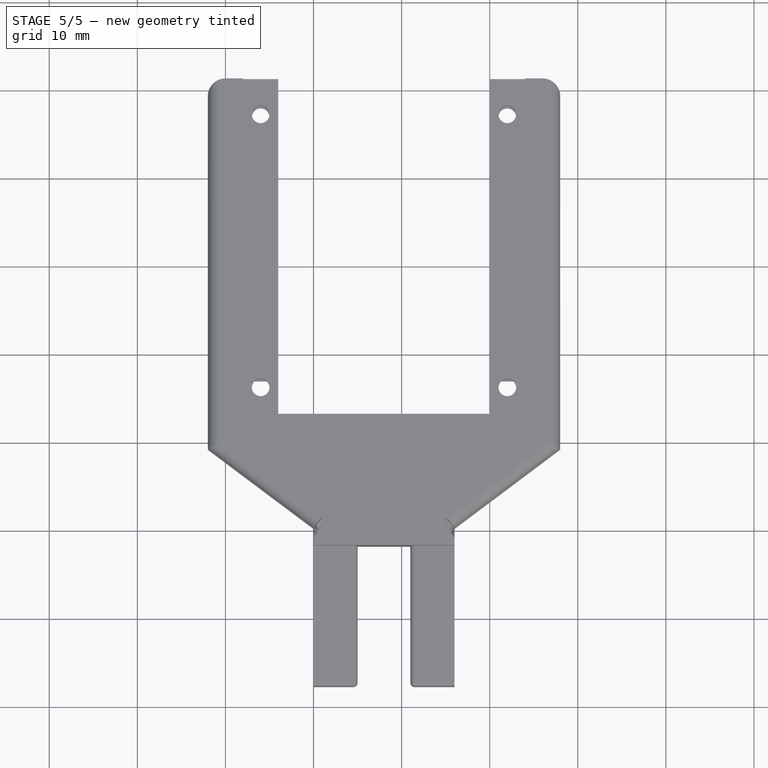
[diagram: stage 5 of 5 — top view after this stage's code; geometry added in this stage tinted green]
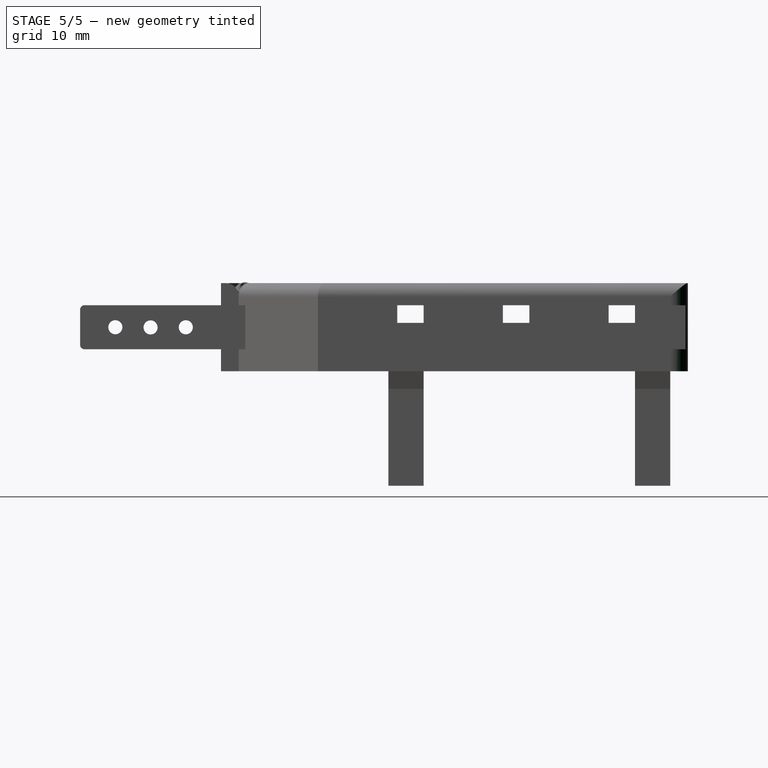
[diagram: stage 5 of 5 — right view after this stage's code; geometry added in this stage tinted green]
FEATURE [Part::Fillet] Fillet001
  Base = -> Fillet
  Edges = 10 edges r=0.5: [Edge35,Edge36,Edge40,Edge41,Edge46,Edge81,Edge82,Edge83,Edge84,Edge88]
FEATURE [Sketcher::SketchObject] Sketch014
  Placement = pos=(-11,0,0) rot=(0.57735,-0.57735,-0.57735;2.0944rad)
  Support = -> Fillet001 [Face65]
  sketch-geometry (12):
    g0: LineSegment StartX=-45 StartY=7.5 StartZ=0 EndX=-42 EndY=7.5 EndZ=0
    g1: LineSegment StartX=-42 StartY=7.5 StartZ=0 EndX=-42 EndY=5.5 EndZ=0
    g2: LineSegment StartX=-42 StartY=5.5 StartZ=0 EndX=-45 EndY=5.5 EndZ=0
    g3: LineSegment StartX=-45 StartY=5.5 StartZ=0 EndX=-45 EndY=7.5 EndZ=0
    g4: LineSegment StartX=-33 StartY=7.5 StartZ=0 EndX=-30 EndY=7.5 EndZ=0
    g5: LineSegment StartX=-30 StartY=7.5 StartZ=0 EndX=-30 EndY=5.5 EndZ=0
    g6: LineSegment StartX=-30 StartY=5.5 StartZ=0 EndX=-33 EndY=5.5 EndZ=0
    g7: LineSegment StartX=-33 StartY=5.5 StartZ=0 EndX=-33 EndY=7.5 EndZ=0
    g8: LineSegment StartX=-21 StartY=7.5 StartZ=0 EndX=-18 EndY=7.5 EndZ=0
    g9: LineSegment StartX=-18 StartY=7.5 StartZ=0 EndX=-18 EndY=5.5 EndZ=0
    g10: LineSegment StartX=-18 StartY=5.5 StartZ=0 EndX=-21 EndY=5.5 EndZ=0
    g11: LineSegment StartX=-21 StartY=5.5 StartZ=0 EndX=-21 EndY=7.5 EndZ=0
  constraints (36):
    c: Coincident(g0,g1)
    c: Coincident(g1,g2)
    c: Coincident(g2,g3)
    c: Coincident(g3,g0)
    c: Horizontal(g0)
    c: Horizontal(g2)
    c: Vertical(g1)
    c: Vertical(g3)
    c: Coincident(g4,g5)
    c: Coincident(g5,g6)
    c: Coincident(g6,g7)
    c: Coincident(g7,g4)
    c: Horizontal(g4)
    c: Horizontal(g6)
    c: Vertical(g5)
    c: Vertical(g7)
    c: Coincident(g8,g9)
    c: Coincident(g9,g10)
    c: Coincident(g10,g11)
    c: Coincident(g11,g8)
    c: Horizontal(g8)
    c: Horizontal(g10)
    c: Vertical(g9)
    c: Vertical(g11)
    c: DistanceY(g-1,g9) = 5.5
    c: DistanceY(g5,g10) = 0
    c: DistanceY(g1,g6) = 0
    c: DistanceY(g9,g8) = 2
    c: DistanceY(g4,g8) = 0
    c: DistanceY(g0,g4) = 0
    c: DistanceX(g10,g9) = 3
    c: DistanceX(g6,g5) = 3
    c: DistanceX(g2,g1) = 3
    c: DistanceX(g9,g-1) = 18
    c: DistanceX(g5,g10) = 9
    c: DistanceX(g1,g6) = 9
FEATURE [PartDesign::Pocket] Pocket011
  Length = 38
  Sketch = -> Sketch014
  Type = 0
FEATURE [Sketcher::SketchObject] Sketch015
  ExternalGeometry = -> [Pocket011]
  Placement = pos=(0,0,10) rot=(0,0,1;0rad)
  Support = -> Pocket011 [Face28]
  sketch-geometry (4):
    g0: LineSegment StartX=-8 StartY=51 StartZ=0 EndX=24 EndY=51 EndZ=0
    g1: LineSegment StartX=24 StartY=51 StartZ=0 EndX=24 EndY=10.5 EndZ=0
    g2: LineSegment StartX=24 StartY=10.5 StartZ=0 EndX=-8 EndY=10.5 EndZ=0
    g3: LineSegment StartX=-8 StartY=10.5 StartZ=0 EndX=-8 EndY=51 EndZ=0
  constraints (10):
    c: Coincident(g0,g1)
    c: Coincident(g1,g2)
    c: Coincident(g2,g3)
    c: Coincident(g3,g0)
    c: Horizontal(g0)
    c: Horizontal(g2)
    c: Vertical(g1)
    c: Vertical(g3)
    c: Coincident(g0,g-3)
    c: Coincident(g1,g-4)
FEATURE [PartDesign::Pocket] Pocket012
  Length = 2
  Sketch = -> Sketch015
  Type = 0
FEATURE [Sketcher::SketchObject] Sketch016
  ExternalGeometry = -> [Pocket012]
  Placement = pos=(0,0,0) rot=(1,0,0;3.14159rad)
  Support = -> Pocket012 [Face85]
  sketch-geometry (6):
    g0: ArcOfCircle CenterX=-10 CenterY=-49 CenterZ=0 NormalX=0 NormalY=0 NormalZ=1 Radius=2 StartAngle=3.14159 EndAngle=4.71239
    g1: LineSegment StartX=-12 StartY=-49 StartZ=0 EndX=-12 EndY=-51 EndZ=0
    g2: LineSegment StartX=-12 StartY=-51 StartZ=0 EndX=-10 EndY=-51 EndZ=0
    g3: ArcOfCircle CenterX=26 CenterY=-49 CenterZ=0 NormalX=0 NormalY=0 NormalZ=1 Radius=2 StartAngle=4.71239 EndAngle=6.28319
    g4: LineSegment StartX=26 StartY=-51 StartZ=0 EndX=28 EndY=-51 EndZ=0
    g5: LineSegment StartX=28 StartY=-51 StartZ=0 EndX=28 EndY=-49 EndZ=0
  constraints (18):
    c: PointOnObject(g0,g-3)
    c: DistanceY(g0,g0) = 0
    c: DistanceX(g0,g0) = 0
    c: Coincident(g0,g-5)
    c: Coincident(g0,g1)
    c: Coincident(g1,g2)
    c: Coincident(g2,g0)
    c: Horizontal(g2)
    c: Coincident(g1,g-5)
    c: Coincident(g3,g-6)
    c: PointOnObject(g3,g-4)
    c: DistanceY(g3,g3) = 0
    c: DistanceX(g3,g3) = 0
    c: Coincident(g3,g4)
    c: Coincident(g4,g5)
    c: Vertical(g5)
    c: Coincident(g5,g3)
    c: Coincident(g4,g-6)
FEATURE [PartDesign::Pocket] Pocket013
  Length = 10
  Sketch = -> Sketch016
  Type = 0
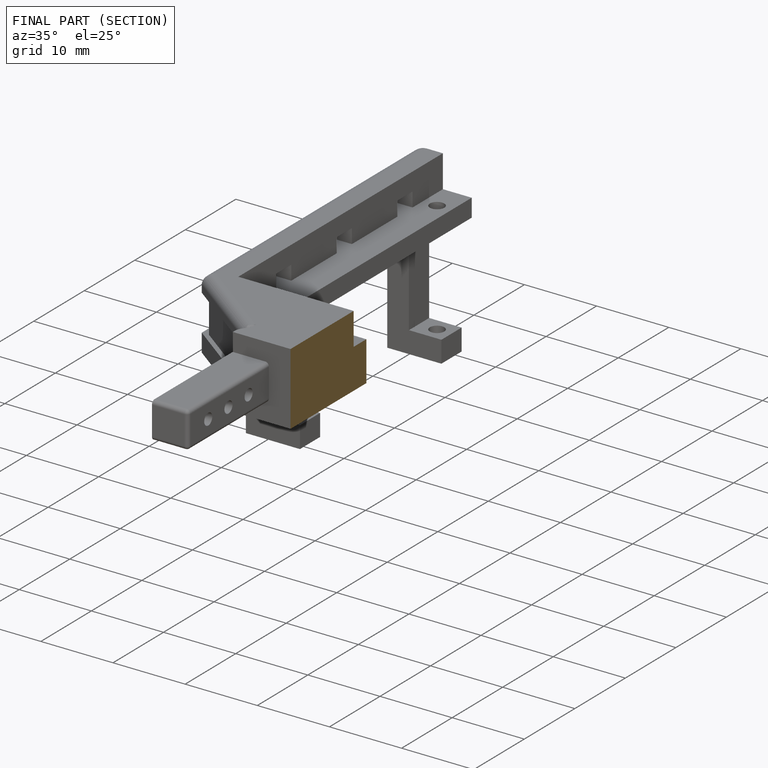
[diagram: finished part — half-section view (interior)]
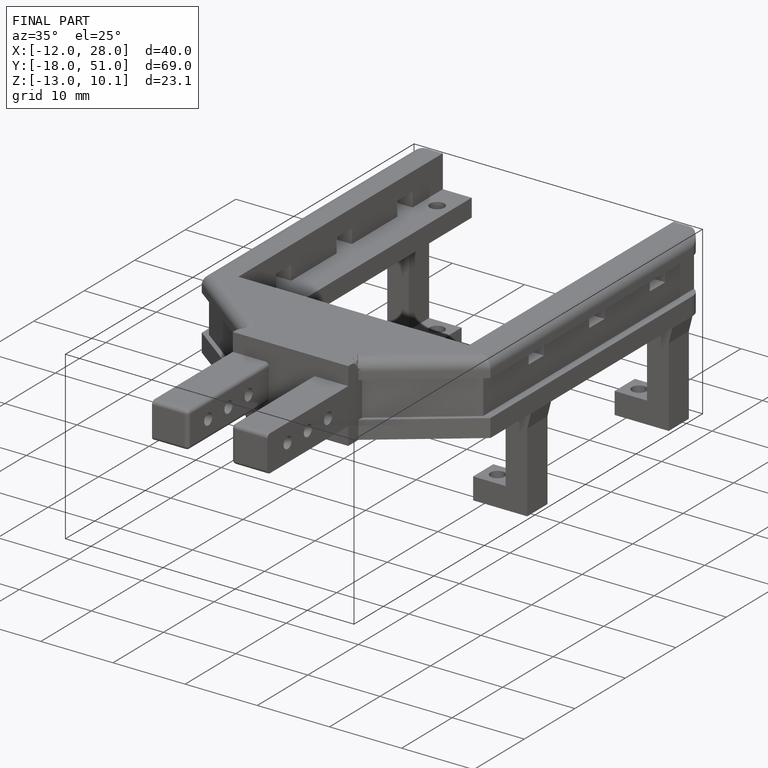
[diagram: finished part — iso view with bounding-box wireframe]
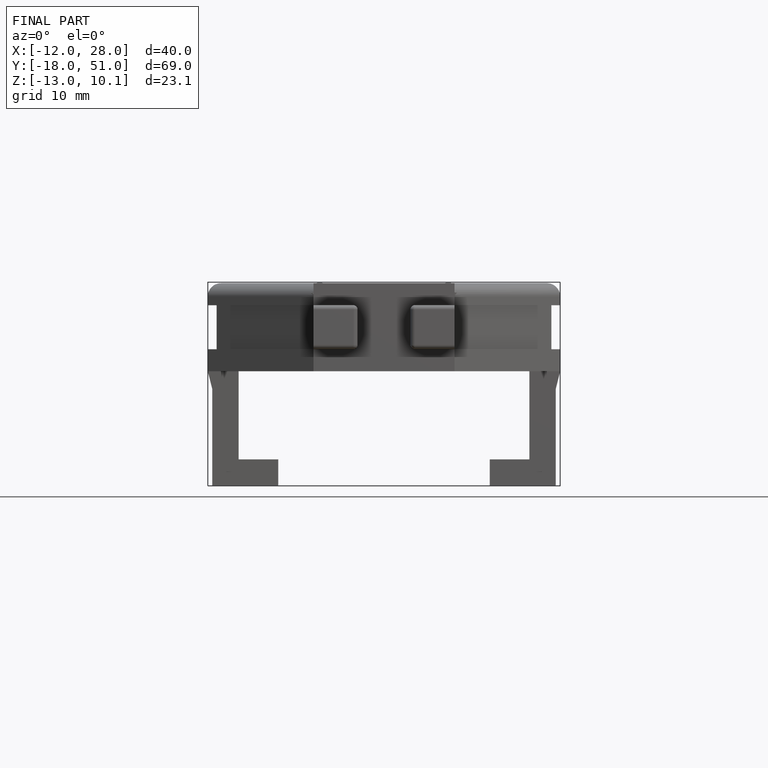
[diagram: finished part — front view with bounding-box wireframe]
